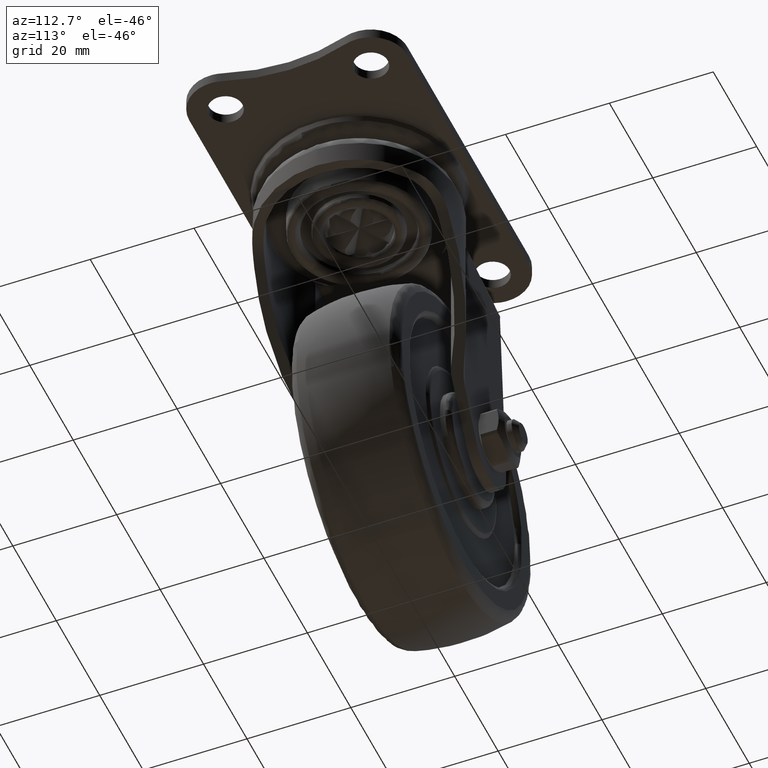
[diagram: clean part render]
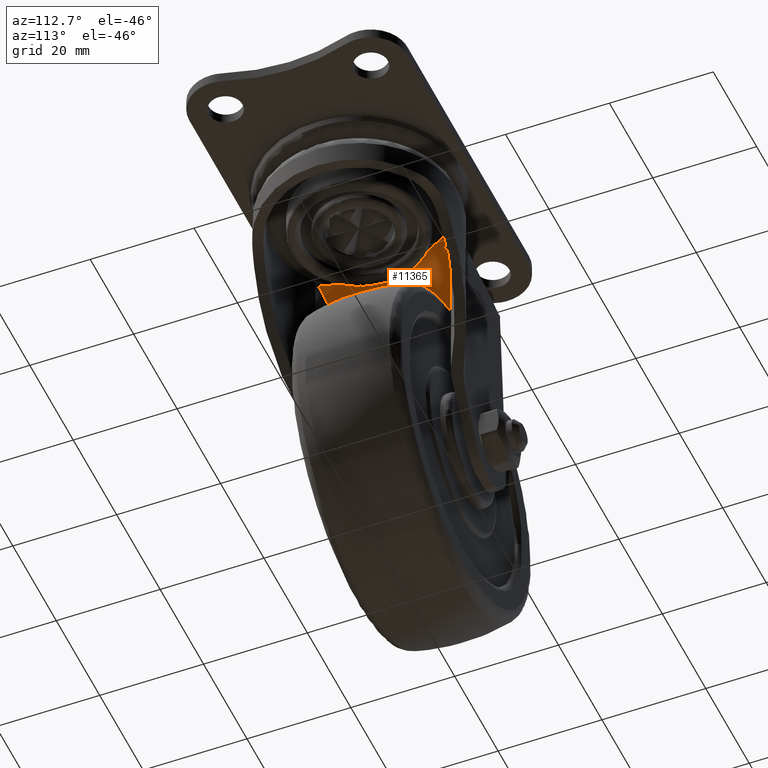
[diagram: same view with one face highlighted and labeled with its STEP entity id]
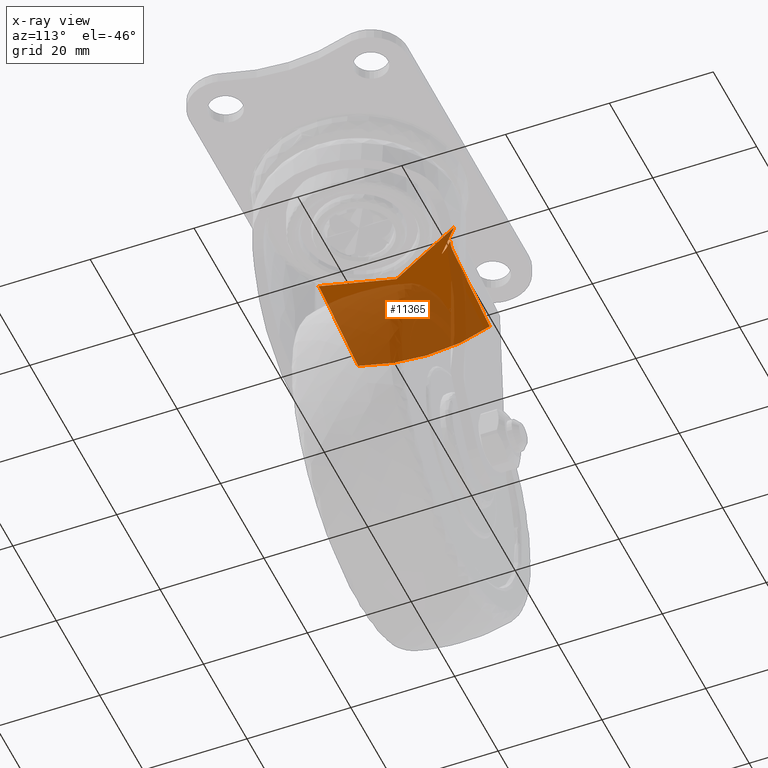
[diagram: x-ray of the same camera — body ghosted, the highlighted face saturated]
A machine part, auxiliary view. The second image highlights one B-rep face of the part: STEP entity #11365.
The next image is the same camera in x-ray: the body ghosted, the highlighted face saturated — about 76% of this face is hidden behind the body in this view.
In plain terms, the highlighted face is a freeform B-spline surface patch.
Its self-contained STEP definition (entity closure, byte-faithful):
#2239=CARTESIAN_POINT('',(15.783267568592700,-14.882382475620609,40.400002999999998));
#2240=VERTEX_POINT('',#2239);
#2333=CARTESIAN_POINT('',(15.783267568592260,14.882382475620370,40.400002999999998));
#2334=VERTEX_POINT('',#2333);
#3609=CARTESIAN_POINT('',(13.225584374103599,-13.149599534603320,39.949014456658901));
#3610=VERTEX_POINT('',#3609);
#3620=CARTESIAN_POINT('',(13.225584374103610,-13.149599534603320,39.949014456658858));
#3621=CARTESIAN_POINT('',(14.425375017935012,-14.132674572492014,40.160569912761403));
#3622=CARTESIAN_POINT('',(15.783267568592720,-14.882382475620620,40.400003000000083));
#3630=(BOUNDED_CURVE()B_SPLINE_CURVE(2,(#3620,#3621,#3622),.UNSPECIFIED.,.F.,.U.)CURVE()GEOMETRIC_REPRESENTATION_ITEM()QUASI_UNIFORM_CURVE()RATIONAL_B_SPLINE_CURVE((1.0,0.995863295028004,1.0))REPRESENTATION_ITEM(''));
#3631=EDGE_CURVE('',#3610,#2240,#3630,.T.);
#3636=CARTESIAN_POINT('',(13.225584374103621,13.149599534603320,39.949014456658901));
#3637=VERTEX_POINT('',#3636);
#3638=CARTESIAN_POINT('',(13.225584374103610,13.149599534603320,39.949014456658858));
#3639=CARTESIAN_POINT('',(14.425375017934801,14.132674572491835,40.160569912761368));
#3640=CARTESIAN_POINT('',(15.783267568592240,14.882382475620361,40.400002999999998));
#3648=(BOUNDED_CURVE()B_SPLINE_CURVE(2,(#3638,#3639,#3640),.UNSPECIFIED.,.F.,.U.)CURVE()GEOMETRIC_REPRESENTATION_ITEM()QUASI_UNIFORM_CURVE()RATIONAL_B_SPLINE_CURVE((1.0,0.995863295027982,1.0))REPRESENTATION_ITEM(''));
#3649=EDGE_CURVE('',#3637,#2334,#3648,.T.);
#10170=CARTESIAN_POINT('',(13.203501717076859,-12.989471000000000,39.945120688522458));
#10171=VERTEX_POINT('',#10170);
#10172=CARTESIAN_POINT('',(13.203501717076859,-12.989471000000000,39.945120688522458));
#10173=CARTESIAN_POINT('',(13.593688182117670,-13.359480014680170,40.013921087993097));
#10174=CARTESIAN_POINT('',(14.004612327576030,-13.703120608284269,40.086378099941747));
#10175=CARTESIAN_POINT('',(14.652328137250770,-14.178745227523990,40.200587869992120));
#10176=CARTESIAN_POINT('',(14.873895157977969,-14.330840171565971,40.239656112746161));
#10177=CARTESIAN_POINT('',(15.323240097574530,-14.618484779618170,40.318887747142099));
#10178=CARTESIAN_POINT('',(15.551468062936230,-14.754403335262420,40.359130494121082));
#10179=CARTESIAN_POINT('',(15.783267568592720,-14.882382475620620,40.400003000000027));
#10180=B_SPLINE_CURVE_WITH_KNOTS('',3,(#10172,#10173,#10174,#10175,#10176,#10177,#10178,#10179),.UNSPECIFIED.,.F.,.U.,(4,2,2,4),(0.0,0.500000000000001,0.750000000000000,1.0),.UNSPECIFIED.);
#10181=EDGE_CURVE('',#10171,#2240,#10180,.T.);
#10183=CARTESIAN_POINT('',(13.203501717076881,12.989471000000000,39.945120688522458));
#10184=VERTEX_POINT('',#10183);
#10185=CARTESIAN_POINT('',(13.203501717076859,-12.989471000000000,39.945120688522458));
#10186=CARTESIAN_POINT('',(13.177364337217140,-12.965210584645950,39.940511963370312));
#10187=CARTESIAN_POINT('',(12.527880746292521,-12.356714493681601,39.825990485797853));
#10188=CARTESIAN_POINT('',(11.792698228483790,-11.470240886622641,39.696357975598438));
#10189=CARTESIAN_POINT('',(10.718980070350900,-9.829786894575536,39.507032499660397));
#10190=CARTESIAN_POINT('',(8.556708472305601,-3.605506728577572,39.125765687409512));
#10191=CARTESIAN_POINT('',(8.635772190569421,3.300290322299930,39.139706753765090));
#10192=CARTESIAN_POINT('',(10.509122346451480,9.446042619077961,39.470028921807497));
#10193=CARTESIAN_POINT('',(11.252436523606081,10.723915208632590,39.601095262909539));
#10194=CARTESIAN_POINT('',(12.306758554536900,12.080273346124329,39.787000678391230));
#10195=CARTESIAN_POINT('',(12.906976344705170,12.710859249333311,39.892835266294341));
#10196=CARTESIAN_POINT('',(13.203501717076881,12.989471000000000,39.945120688522458));
#10197=B_SPLINE_CURVE_WITH_KNOTS('',3,(#10185,#10186,#10187,#10188,#10189,#10190,#10191,#10192,#10193,#10194,#10195,#10196),.UNSPECIFIED.,.F.,.U.,(4,1,1,1,1,1,1,1,1,4),(0.039355479374835,0.042915286175141,0.128187924166375,0.153036423886276,0.237523663938489,0.775859727423748,0.789454854962052,0.874103904144336,0.920057284353116,0.960635897983392),.UNSPECIFIED.);
#10198=EDGE_CURVE('',#10171,#10184,#10197,.T.);
#10200=CARTESIAN_POINT('',(15.783267568592249,14.882382475620361,40.400002999999998));
#10201=CARTESIAN_POINT('',(15.314283064826469,14.623450803340560,40.317308380643453));
#10202=CARTESIAN_POINT('',(14.864429727446110,14.334726191956470,40.237987102003608));
#10203=CARTESIAN_POINT('',(14.217037220168461,13.858988760671380,40.123834338887271));
#10204=CARTESIAN_POINT('',(14.005509893651130,13.692951390236750,40.086536365053568));
#10205=CARTESIAN_POINT('',(13.595486454454310,13.349867491367350,40.014238171916297));
#10206=CARTESIAN_POINT('',(13.396528258642689,13.172515689785500,39.979156474891347));
#10207=CARTESIAN_POINT('',(13.203501717076881,12.989471000000030,39.945120688522451));
#10208=B_SPLINE_CURVE_WITH_KNOTS('',3,(#10200,#10201,#10202,#10203,#10204,#10205,#10206,#10207),.UNSPECIFIED.,.F.,.U.,(4,2,2,4),(0.0,0.499999999999999,0.750000000000000,1.0),.UNSPECIFIED.);
#10209=EDGE_CURVE('',#2334,#10184,#10208,.T.);
#10239=CARTESIAN_POINT('',(-5.852289912686610,-12.689471013637821,36.585066466112202));
#10240=VERTEX_POINT('',#10239);
#10341=CARTESIAN_POINT('',(-5.852289912674300,12.689471013675860,36.585066466114348));
#10342=VERTEX_POINT('',#10341);
#10452=CARTESIAN_POINT('',(11.407390861832020,12.689471000000060,39.628417892792513));
#10453=VERTEX_POINT('',#10452);
#10454=CARTESIAN_POINT('',(11.407390861832020,12.689471000000060,39.628417892792513));
#10455=CARTESIAN_POINT('',(11.446715536673620,12.694102005618991,39.635351893790933));
#10456=CARTESIAN_POINT('',(11.485764191763611,12.698696017916330,39.642237225061159));
#10457=CARTESIAN_POINT('',(11.564101298785481,12.707949159352680,39.656050170253721));
#10458=CARTESIAN_POINT('',(11.603266754520730,12.712594005801421,39.662956096628562));
#10459=CARTESIAN_POINT('',(11.720741097629100,12.726658479175400,39.683669992310627));
#10460=CARTESIAN_POINT('',(11.799028926431230,12.736202343879690,39.697474248423710));
#10461=CARTESIAN_POINT('',(12.033681583351891,12.766077753970240,39.738849841837208));
#10462=CARTESIAN_POINT('',(12.189891323788681,12.787324259310230,39.766393832995753));
#10463=CARTESIAN_POINT('',(12.422790983009349,12.827541707378661,39.807460325625833));
#10464=CARTESIAN_POINT('',(12.500179402250220,12.842391755793381,39.821105991570739));
#10465=CARTESIAN_POINT('',(12.654001655783510,12.877723550707850,39.848229004383249));
#10466=CARTESIAN_POINT('',(12.730435803340839,12.898203449060500,39.861706406487869));
#10467=CARTESIAN_POINT('',(12.843771190618041,12.936686230795649,39.881690492604292));
#10468=CARTESIAN_POINT('',(12.881432596902309,12.950880201461761,39.888331214487643));
#10469=CARTESIAN_POINT('',(12.954960136693821,12.982034831250120,39.901296103234401));
#10470=CARTESIAN_POINT('',(12.990948828406120,12.999029448423590,39.907641880415511));
#10471=CARTESIAN_POINT('',(13.096294631154000,13.054804710808710,39.926217187252092));
#10472=CARTESIAN_POINT('',(13.163043305264161,13.098355124643270,39.937986779112407));
#10473=CARTESIAN_POINT('',(13.225584374103621,13.149599534603320,39.949014456658901));
#10474=B_SPLINE_CURVE_WITH_KNOTS('',3,(#10454,#10455,#10456,#10457,#10458,#10459,#10460,#10461,#10462,#10463,#10464,#10465,#10466,#10467,#10468,#10469,#10470,#10471,#10472,#10473),.UNSPECIFIED.,.F.,.U.,(4,2,2,2,2,2,2,2,2,4),(0.0,0.062500000000003,0.125000000000005,0.250000000000006,0.500000000000004,0.625000000000003,0.750000000000003,0.812500000000002,0.875000000000001,1.0),.UNSPECIFIED.);
#10475=EDGE_CURVE('',#10453,#3637,#10474,.T.);
#10590=CARTESIAN_POINT('',(11.407390861831599,-12.689470999999941,39.628417892792399));
#10591=VERTEX_POINT('',#10590);
#10619=CARTESIAN_POINT('',(13.225584374103599,-13.149599534603301,39.949014456658901));
#10620=CARTESIAN_POINT('',(13.101125398581290,-13.047621316398111,39.927068981864579));
#10621=CARTESIAN_POINT('',(12.960753532852451,-12.976859020061280,39.902317635260033));
#10622=CARTESIAN_POINT('',(12.772983090084960,-12.912545760625280,39.869208640897988));
#10623=CARTESIAN_POINT('',(12.734875933244441,-12.900887590375399,39.862489321166983));
#10624=CARTESIAN_POINT('',(12.658483809797101,-12.879633161615240,39.849019329046577));
#10625=CARTESIAN_POINT('',(12.620090640529760,-12.869996507095051,39.842249577609252));
#10626=CARTESIAN_POINT('',(12.504477634424600,-12.843265080237870,39.821863885852352));
#10627=CARTESIAN_POINT('',(12.426835615827800,-12.828291973547159,39.808173503499880));
#10628=CARTESIAN_POINT('',(12.193035124585601,-12.787767110645261,39.766948169883499));
#10629=CARTESIAN_POINT('',(12.036009868693620,-12.766386716716591,39.739260381350867));
#10630=CARTESIAN_POINT('',(11.800389204448210,-12.736369365729409,39.697714102132991));
#10631=CARTESIAN_POINT('',(11.721797703548949,-12.726786142478860,39.683856300437327));
#10632=CARTESIAN_POINT('',(11.603879448695370,-12.712666787039581,39.663064131139592));
#10633=CARTESIAN_POINT('',(11.544912301557600,-12.705673194469410,39.652666632399352));
#10634=CARTESIAN_POINT('',(11.485940076839830,-12.698721442887550,39.642268238344784));
#10635=CARTESIAN_POINT('',(11.446624845200979,-12.694090362895579,39.635335902437767));
#10636=CARTESIAN_POINT('',(11.426847438618969,-12.691762271752470,39.631848612141383));
#10637=CARTESIAN_POINT('',(11.407390861831759,-12.689470999999999,39.628417892792513));
#10638=B_SPLINE_CURVE_WITH_KNOTS('',3,(#10619,#10620,#10621,#10622,#10623,#10624,#10625,#10626,#10627,#10628,#10629,#10630,#10631,#10632,#10633,#10634,#10635,#10636,#10637),.UNSPECIFIED.,.F.,.U.,(4,2,2,2,2,2,2,1,2,4),(0.0,0.249999999999996,0.312499999999996,0.374999999999996,0.499999999999997,0.749999999999997,0.874999999999998,0.937499999999998,0.968749999999999,1.0),.UNSPECIFIED.);
#10639=EDGE_CURVE('',#3610,#10591,#10638,.T.);
#11203=CARTESIAN_POINT('',(11.407390861831599,-12.689470999999941,39.628417892792399));
#11204=CARTESIAN_POINT('',(-5.852289912686610,-12.689471013637821,36.585066466112202));
#11205=QUASI_UNIFORM_CURVE('',1,(#11203,#11204),.UNSPECIFIED.,.F.,.U.);
#11206=EDGE_CURVE('',#10591,#10240,#11205,.T.);
#11230=CARTESIAN_POINT('',(-5.852289912674300,12.689471013675860,36.585066466114348));
#11231=CARTESIAN_POINT('',(11.407390861832020,12.689471000000060,39.628417892792513));
#11232=QUASI_UNIFORM_CURVE('',1,(#11230,#11231),.UNSPECIFIED.,.F.,.U.);
#11233=EDGE_CURVE('',#10342,#10453,#11232,.T.);
#11336=CARTESIAN_POINT('',(16.963884102707318,-16.369132552809809,40.608177543318043));
#11337=CARTESIAN_POINT('',(-9.033315201236235,-16.369132552809809,36.024170004660043));
#11338=CARTESIAN_POINT('',(16.963884102707318,16.369132497291460,40.608177543318043));
#11339=CARTESIAN_POINT('',(-9.033315201236235,16.369132497291460,36.024170004660043));
#11340=B_SPLINE_SURFACE_WITH_KNOTS('',1,1,((#11336,#11338),(#11337,#11339)),.UNSPECIFIED.,.F.,.F.,.U.,(2,2),(2,2),(1.201229557597637,27.599477544224261),(1.489726417934895,34.227991468036173),.UNSPECIFIED.);
#11341=CARTESIAN_POINT('',(-5.852289912686624,-12.689471013637840,36.585066466112167));
#11342=CARTESIAN_POINT('',(-9.958321205466865,2.106475E-011,35.861063655486255));
#11343=CARTESIAN_POINT('',(-5.852289912674322,12.689471013675870,36.585066466114341));
#11351=(BOUNDED_CURVE()B_SPLINE_CURVE(2,(#11341,#11342,#11343),.UNSPECIFIED.,.F.,.U.)CURVE()GEOMETRIC_REPRESENTATION_ITEM()QUASI_UNIFORM_CURVE()RATIONAL_B_SPLINE_CURVE((1.0,0.950032290752949,1.0))REPRESENTATION_ITEM(''));
#11352=EDGE_CURVE('',#10240,#10342,#11351,.T.);
#11353=ORIENTED_EDGE('',*,*,#11352,.T.);
#11354=ORIENTED_EDGE('',*,*,#11233,.T.);
#11355=ORIENTED_EDGE('',*,*,#10475,.T.);
#11356=ORIENTED_EDGE('',*,*,#3649,.T.);
#11357=ORIENTED_EDGE('',*,*,#10209,.T.);
#11358=ORIENTED_EDGE('',*,*,#10198,.F.);
#11359=ORIENTED_EDGE('',*,*,#10181,.T.);
#11360=ORIENTED_EDGE('',*,*,#3631,.F.);
#11361=ORIENTED_EDGE('',*,*,#10639,.T.);
#11362=ORIENTED_EDGE('',*,*,#11206,.T.);
#11363=EDGE_LOOP('',(#11353,#11354,#11355,#11356,#11357,#11358,#11359,#11360,#11361,#11362));
#11364=FACE_OUTER_BOUND('',#11363,.T.);
#11365=ADVANCED_FACE('',(#11364),#11340,.T.);